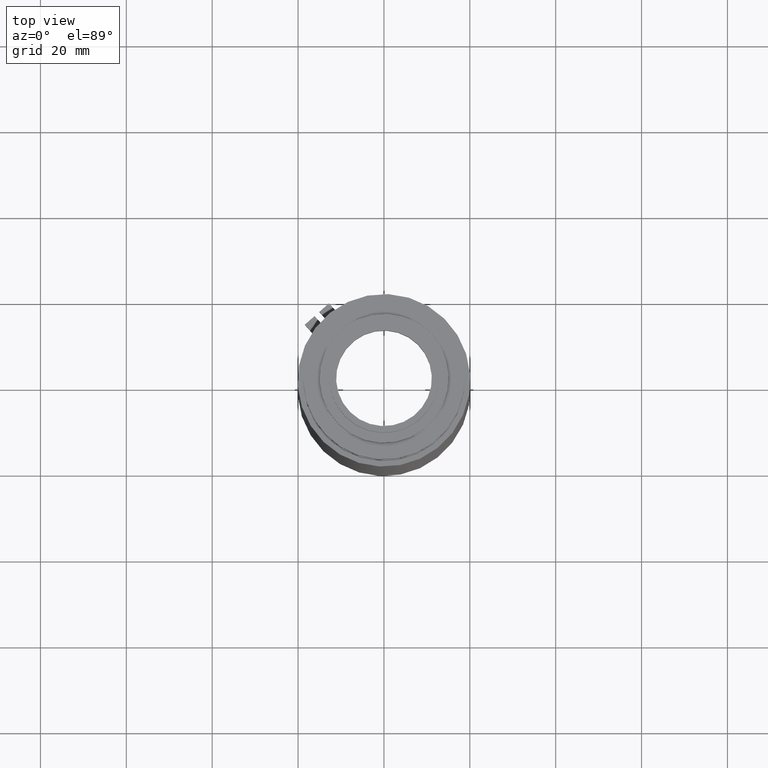
[diagram: clean part render]
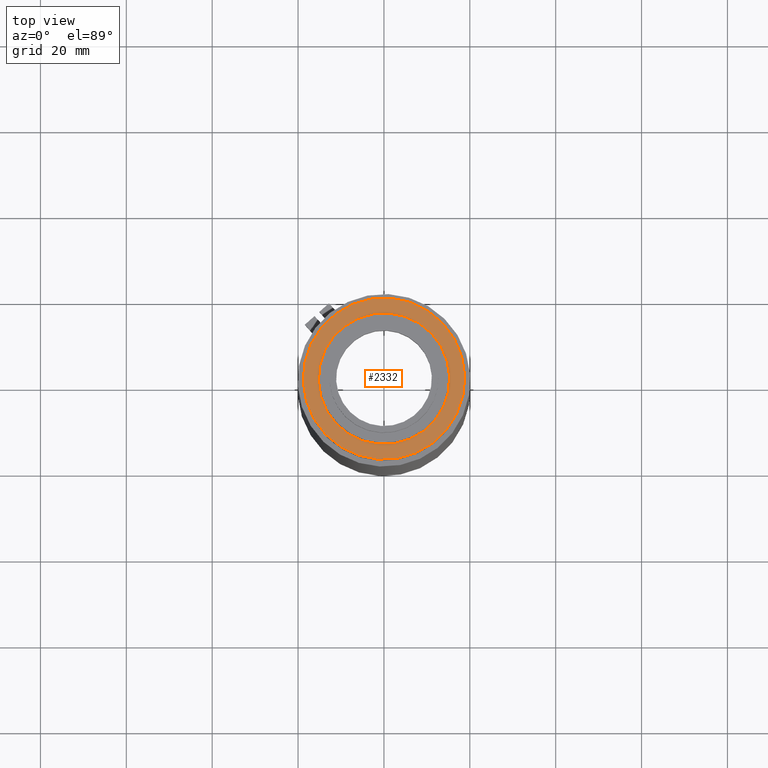
[diagram: same view with one face highlighted and labeled with its STEP entity id]
A machine part, top view. The second image highlights one B-rep face of the part: STEP entity #2332.
In plain terms, the highlighted planar face has unit normal (0, -0, -1).
Its self-contained STEP definition (entity closure, byte-faithful):
#340 = VERTEX_POINT ( 'NONE', #2970 ) ;
#425 = CIRCLE ( 'NONE', #1076, 15.30000000000000249 ) ;
#499 = CARTESIAN_POINT ( 'NONE',  ( -9.350998017823105357, 16.28943303472867044, 344.5586631449635320 ) ) ;
#636 = VERTEX_POINT ( 'NONE', #1827 ) ;
#745 = CIRCLE ( 'NONE', #3266, 18.80000000000000071 ) ;
#832 = DIRECTION ( 'NONE',  ( -5.993364155279202502E-18, 1.043572600051914778E-17, 1.000000000000000000 ) ) ;
#1018 = DIRECTION ( 'NONE',  ( -0.8671639450740893373, -0.4980227829763834158, 0.000000000000000000 ) ) ;
#1076 = AXIS2_PLACEMENT_3D ( 'NONE', #2392, #832, #2721 ) ;
#1271 = DIRECTION ( 'NONE',  ( 5.993364155279201731E-18, -1.043572600051914933E-17, -1.000000000000000000 ) ) ;
#1547 = EDGE_CURVE ( 'NONE', #340, #340, #745, .T. ) ;
#1827 = CARTESIAN_POINT ( 'NONE',  ( -13.25577805750066496, -7.632997712202875817, 344.5586631449635320 ) ) ;
#1831 = EDGE_LOOP ( 'NONE', ( #2326 ) ) ;
#2073 = FACE_OUTER_BOUND ( 'NONE', #1831, .T. ) ;
#2180 = DIRECTION ( 'NONE',  ( 5.993364155279202502E-18, -1.043572600051914778E-17, -1.000000000000000000 ) ) ;
#2281 = CARTESIAN_POINT ( 'NONE',  ( 0.01183030213290306790, -0.01324913266420826331, 344.5586631449635320 ) ) ;
#2326 = ORIENTED_EDGE ( 'NONE', *, *, #1547, .F. ) ;
#2332 = ADVANCED_FACE ( 'NONE', ( #3958, #2073 ), #3635, .F. ) ;
#2392 = CARTESIAN_POINT ( 'NONE',  ( 0.01183030213290306790, -0.01324913266420826331, 344.5586631449635320 ) ) ;
#2721 = DIRECTION ( 'NONE',  ( -0.8671639450740893373, -0.4980227829763834158, 0.000000000000000000 ) ) ;
#2970 = CARTESIAN_POINT ( 'NONE',  ( -16.29085186525997742, -9.376077452620215524, 344.5586631449635320 ) ) ;
#3266 = AXIS2_PLACEMENT_3D ( 'NONE', #2281, #2180, #1018 ) ;
#3484 = EDGE_CURVE ( 'NONE', #636, #636, #425, .T. ) ;
#3635 = PLANE ( 'NONE',  #4666 ) ;
#3958 = FACE_BOUND ( 'NONE', #4806, .T. ) ;
#4198 = ORIENTED_EDGE ( 'NONE', *, *, #3484, .F. ) ;
#4666 = AXIS2_PLACEMENT_3D ( 'NONE', #499, #1271, #4819 ) ;
#4806 = EDGE_LOOP ( 'NONE', ( #4198 ) ) ;
#4819 = DIRECTION ( 'NONE',  ( -0.8671639450740893373, -0.4980227829763833602, 0.000000000000000000 ) ) ;